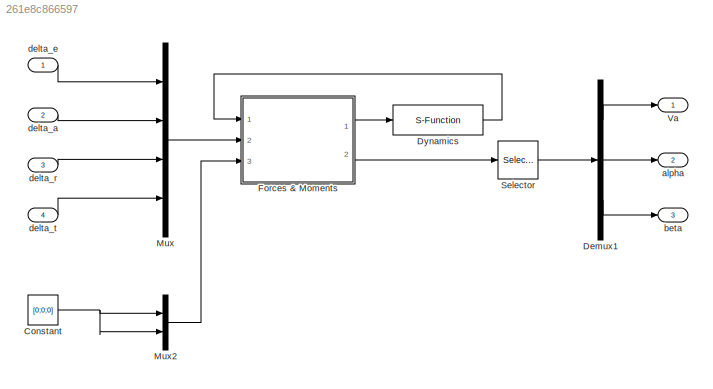
MODEL slx_261e8c866597
KIND model
CONFIG AbsTol = auto
CONFIG EnableMultiTasking = off
CONFIG FixedStep = auto
CONFIG MaxStep = auto
CONFIG MinStep = auto
CONFIG RelTol = 1e-3
CONFIG SampleTimeConstraint = Unconstrained
CONFIG SolverName = VariableStepAuto
CONFIG StartTime = 0.0
CONFIG StopTime = 10.0
BLOCK [Constant] Constant
  Value = [0;0;0]
BLOCK [Demux] Demux1
  Outputs = 3
  Ports = [1, 3]
BLOCK [S-Function] Dynamics
  EnableBusSupport = off
  FunctionName = aircraft_dynamics
  Parameters = UAV
  Ports = [1, 1]
  SFcnIsStateOwnerBlock = off
  SFunctionDeploymentMode = off
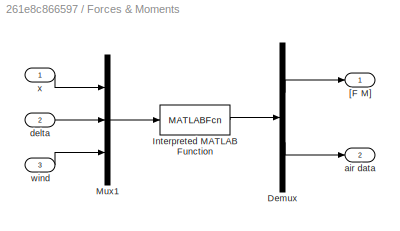
BLOCK [SubSystem] Forces & Moments
  Ports = [3, 2]
  RequestExecContextInheritance = off
BLOCK [Demux] Forces & Moments/Demux
  Outputs = [6;6]
  Ports = [1, 2]
BLOCK [MATLABFcn] Forces & Moments/Interpreted MATLAB Function
  MATLABFcn = forces_moments(u(1:12),u(13:16),u(17:22),UAV)
  OutputDimensions = 12
  Ports = [1, 1]
BLOCK [Mux] Forces & Moments/Mux1
  DisplayOption = bar
  Inputs = 3
  Ports = [3, 1]
BLOCK [Outport] Forces & Moments/[F M]
BLOCK [Outport] Forces & Moments/air data
  Port = 2
BLOCK [Inport] Forces & Moments/delta
  Port = 2
BLOCK [Inport] Forces & Moments/wind
  Port = 3
BLOCK [Inport] Forces & Moments/x
BLOCK [Mux] Mux
  DisplayOption = bar
  Ports = [4, 1]
BLOCK [Mux] Mux2
  DisplayOption = bar
  Inputs = 2
  Ports = [2, 1]
BLOCK [Selector] Selector
  IndexOptions = Index vector (dialog)
  Indices = [1 2 3]
  InputPortWidth = 6
  OutputSizes = 1
  Ports = [1, 1]
BLOCK [Outport] Va
BLOCK [Outport] alpha
  Port = 2
BLOCK [Outport] beta
  Port = 3
BLOCK [Inport] delta_a
  Port = 2
BLOCK [Inport] delta_e
BLOCK [Inport] delta_r
  Port = 3
BLOCK [Inport] delta_t
  Port = 4
NET Constant:1 -> Mux2:1, Mux2:2
LINE Demux1:1 -> Va:1
LINE Demux1:2 -> alpha:1
LINE Demux1:3 -> beta:1
LINE Dynamics:1 -> Forces & Moments:1
LINE Forces & Moments/Demux:1 -> Forces & Moments/[F M]:1
LINE Forces & Moments/Demux:2 -> Forces & Moments/air data:1
LINE Forces & Moments/Interpreted MATLAB Function:1 -> Forces & Moments/Demux:1
LINE Forces & Moments/Mux1:1 -> Forces & Moments/Interpreted MATLAB Function:1
LINE Forces & Moments/delta:1 -> Forces & Moments/Mux1:2
LINE Forces & Moments/wind:1 -> Forces & Moments/Mux1:3
LINE Forces & Moments/x:1 -> Forces & Moments/Mux1:1
LINE Forces & Moments:1 -> Dynamics:1
LINE Forces & Moments:2 -> Selector:1
LINE Mux2:1 -> Forces & Moments:3
LINE Mux:1 -> Forces & Moments:2
LINE Selector:1 -> Demux1:1
LINE delta_a:1 -> Mux:2
LINE delta_e:1 -> Mux:1
LINE delta_r:1 -> Mux:3
LINE delta_t:1 -> Mux:4
note: NET lines group one-source signal fan-out (src -> all destinations, sorted); 1:1 wires keep LINE
